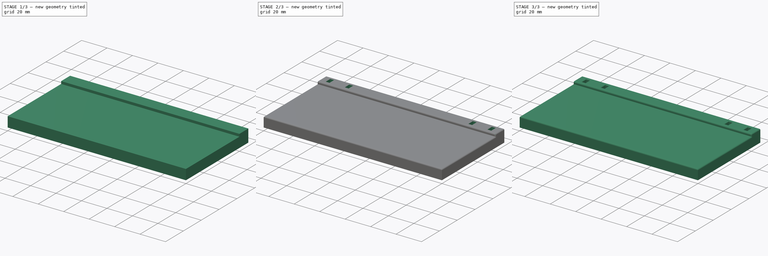
[diagram: build sequence overview — one tinted view per stage of 3, left to right]
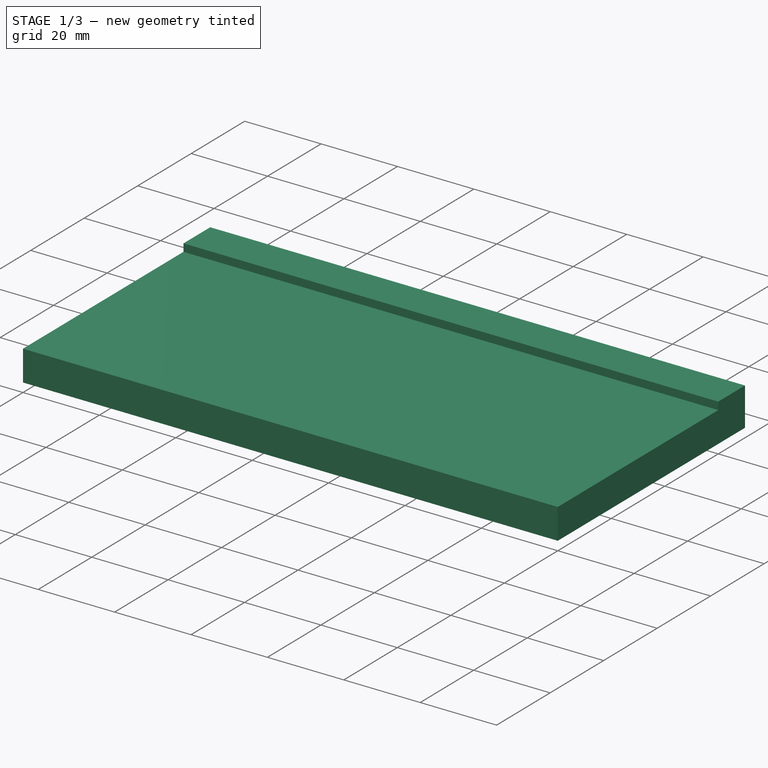
[diagram: stage 1 of 3 — iso view after this stage's code; geometry added in this stage tinted green]
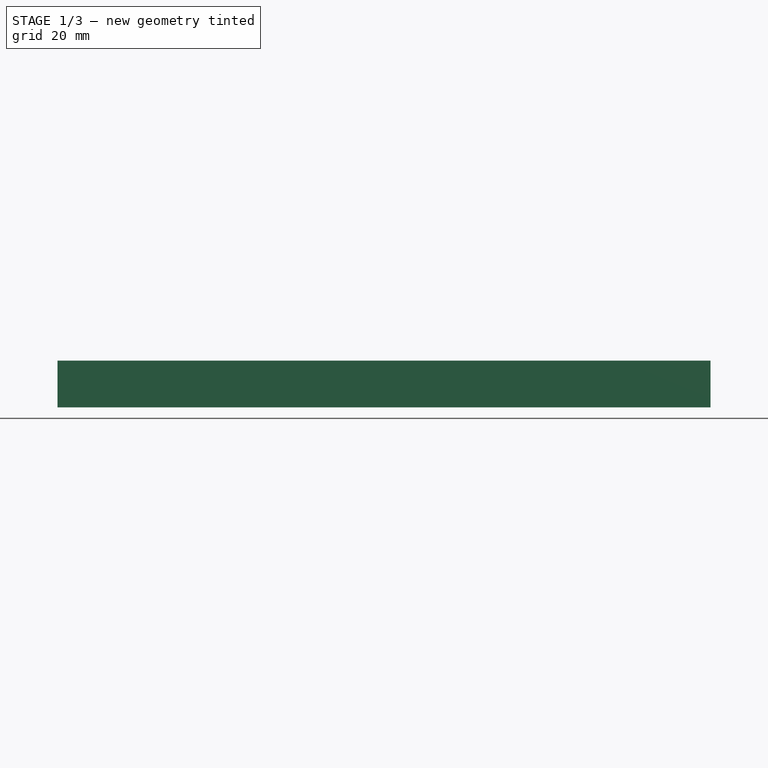
[diagram: stage 1 of 3 — front view after this stage's code; geometry added in this stage tinted green]
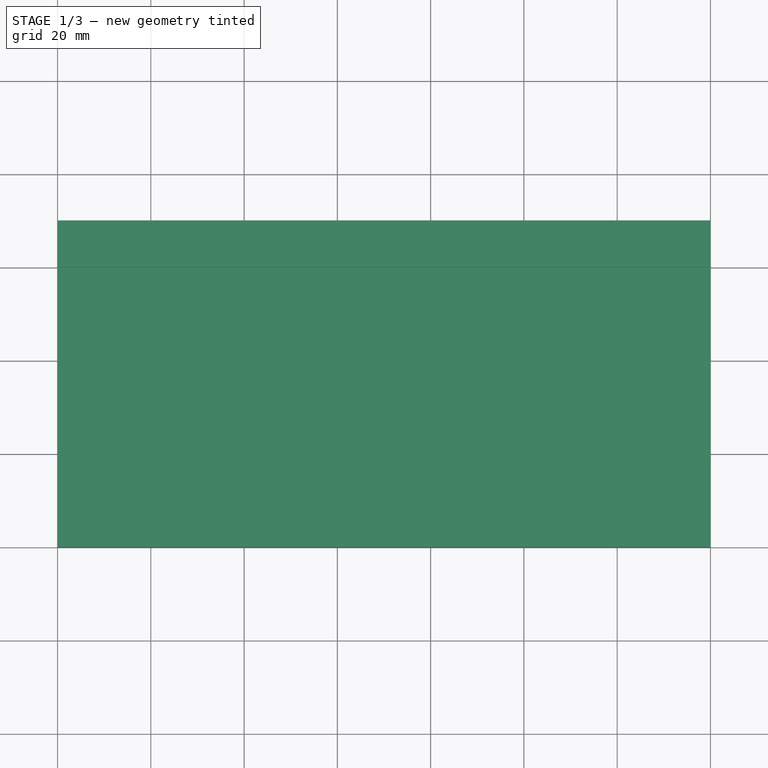
[diagram: stage 1 of 3 — top view after this stage's code; geometry added in this stage tinted green]
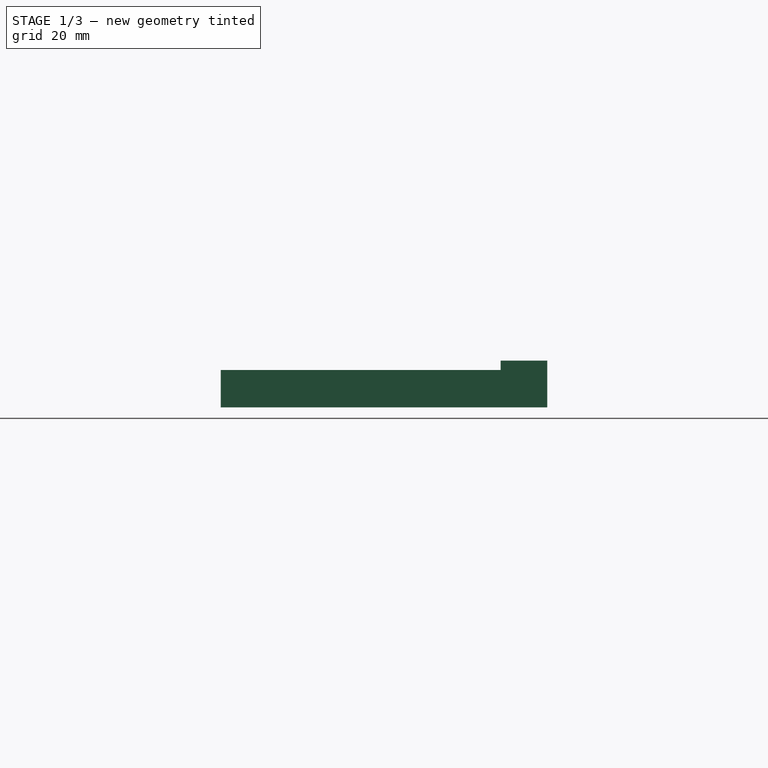
[diagram: stage 1 of 3 — right view after this stage's code; geometry added in this stage tinted green]
FCSTD DOCUMENT  (FreeCAD 0.19R)
Label: balkonkasten_v2
License: All rights reserved
LicenseURL: http://en.wikipedia.org/wiki/All_rights_reserved
objects: Sketcher::SketchObject×3, PartDesign::Fillet×3, PartDesign::Pocket×2, PartDesign::Pad×1, PartDesign::Body×1
note: 16 computed .brp shape members not serialized (recipe doc carries the construction recipe); baked Part::Feature solids carry a one-line shape summary decoded from their .brp

FEATURE [Sketcher::SketchObject] Sketch
  FullyConstrained = true
  MapMode = 5
  Support = -> [XY_Plane]
  sketch-geometry (4):
    g0: LineSegment StartX=0 StartY=70 StartZ=0 EndX=140 EndY=70 EndZ=0
    g1: LineSegment StartX=140 StartY=70 StartZ=0 EndX=140 EndY=0 EndZ=0
    g2: LineSegment StartX=140 StartY=0 StartZ=0 EndX=0 EndY=0 EndZ=0
    g3: LineSegment StartX=0 StartY=0 StartZ=0 EndX=0 EndY=70 EndZ=0
  constraints (11):
    c: Coincident(g0,g1)
    c: Coincident(g1,g2)
    c: Coincident(g2,g3)
    c: Coincident(g3,g0)
    c: Horizontal(g0)
    c: Horizontal(g2)
    c: Vertical(g1)
    c: Vertical(g3)
    c: Coincident(g-1,g2)
    c: DistanceY(g1,g1) = 70
    c: DistanceX(g0,g0) = 140
FEATURE [PartDesign::Pad] Pad
  Direction = (1,1,1)
  Length = 10
  Length2 = 100
  Profile = -> Sketch
  Type = 0
FEATURE [Sketcher::SketchObject] Sketch001
  FullyConstrained = true
  MapMode = 5
  Placement = pos=(0,0,10) rot=(0,0,1;0rad)
  Support = -> [Pad]
  sketch-geometry (4):
    g0: LineSegment StartX=0 StartY=60 StartZ=0 EndX=140 EndY=60 EndZ=0
    g1: LineSegment StartX=140 StartY=60 StartZ=0 EndX=140 EndY=0 EndZ=0
    g2: LineSegment StartX=140 StartY=0 StartZ=0 EndX=0 EndY=0 EndZ=0
    g3: LineSegment StartX=0 StartY=0 StartZ=0 EndX=0 EndY=60 EndZ=0
  constraints (11):
    c: Coincident(g0,g1)
    c: Coincident(g1,g2)
    c: Coincident(g2,g3)
    c: Coincident(g3,g0)
    c: Horizontal(g0)
    c: Horizontal(g2)
    c: Vertical(g1)
    c: Vertical(g3)
    c: Coincident(g2,g-1)
    c: DistanceX(g2,g2) = 140
    c: DistanceY(g1,g1) = 60
FEATURE [PartDesign::Pocket] Pocket
  BaseFeature = -> Pad
  Length = 2
  Length2 = 100
  Profile = -> Sketch001
  Type = 0
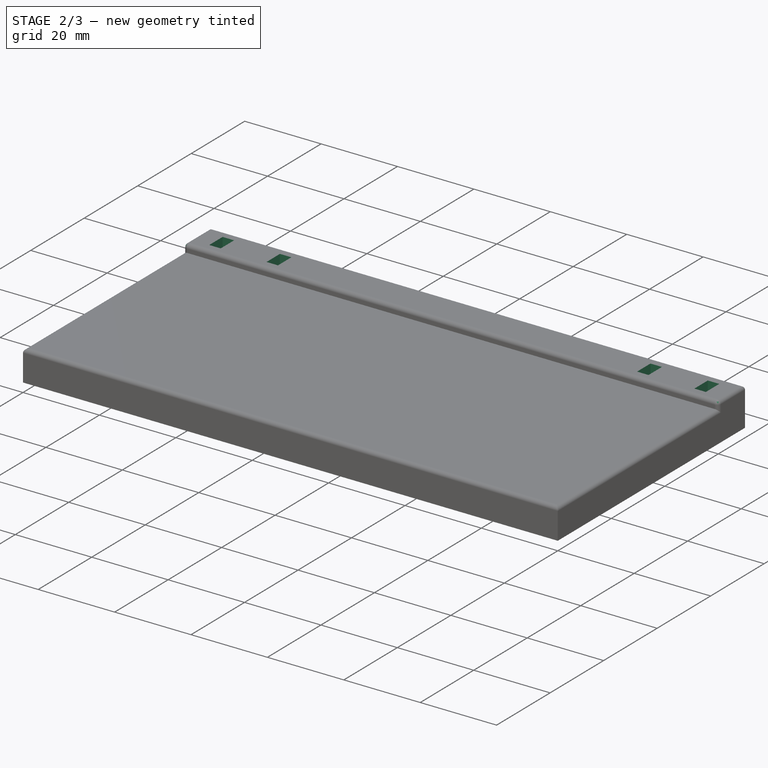
[diagram: stage 2 of 3 — iso view after this stage's code; geometry added in this stage tinted green]
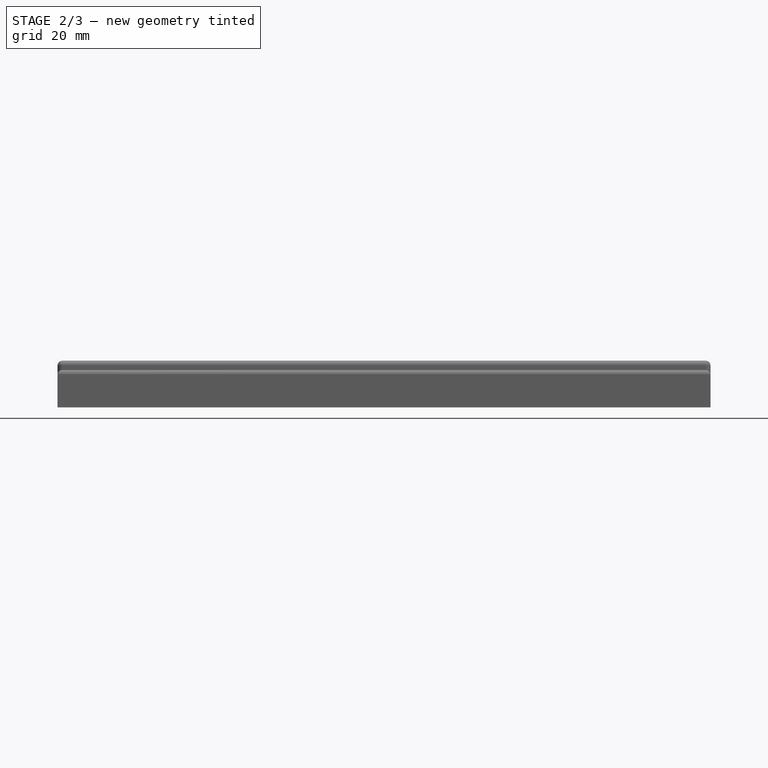
[diagram: stage 2 of 3 — front view after this stage's code; geometry added in this stage tinted green]
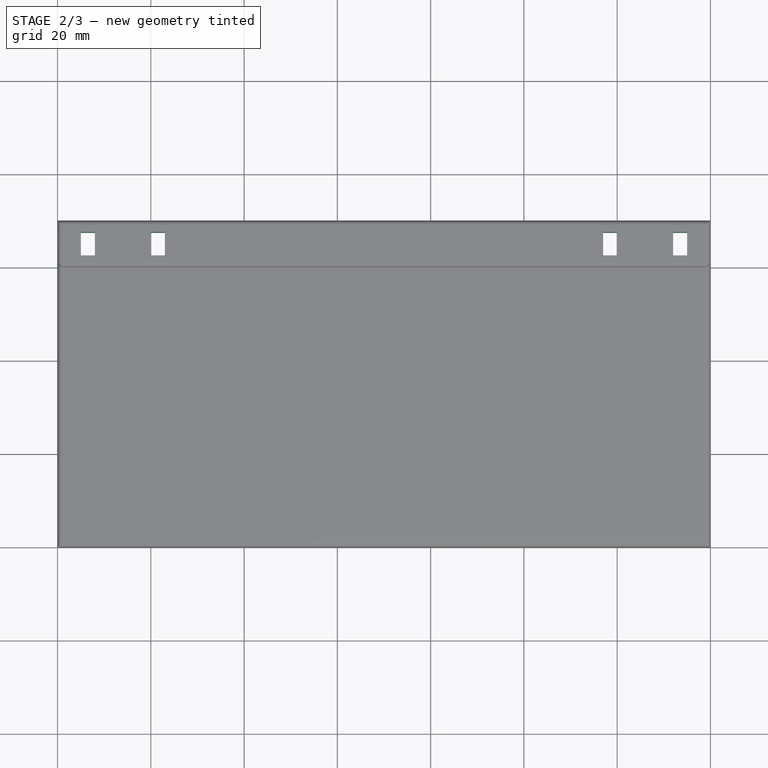
[diagram: stage 2 of 3 — top view after this stage's code; geometry added in this stage tinted green]
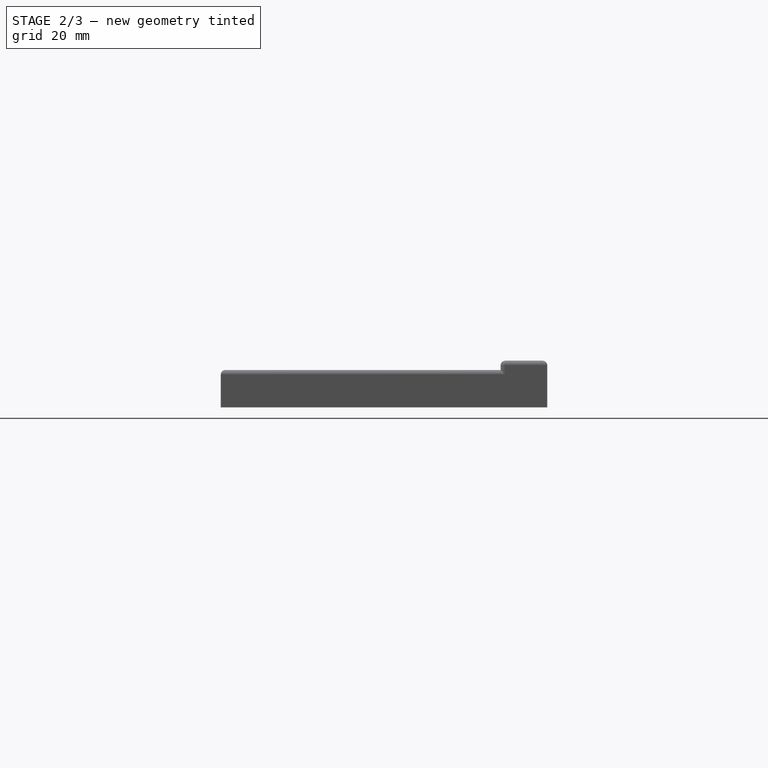
[diagram: stage 2 of 3 — right view after this stage's code; geometry added in this stage tinted green]
FEATURE [PartDesign::Fillet] Fillet
  Base = -> Pocket [Edge8,Edge18,Edge12,Edge16,Edge14,Edge4,Edge6,Edge7,Edge13]
  BaseFeature = -> Pocket
  Radius = 1
  SupportTransform = false
FEATURE [Sketcher::SketchObject] Sketch002
  FullyConstrained = true
  MapMode = 5
  Placement = pos=(0,0,10) rot=(0,0,1;0rad)
  Support = -> [Fillet]
  sketch-geometry (16):
    g0: LineSegment StartX=5 StartY=67.5 StartZ=0 EndX=8 EndY=67.5 EndZ=0
    g1: LineSegment StartX=8 StartY=67.5 StartZ=0 EndX=8 EndY=62.5 EndZ=0
    g2: LineSegment StartX=8 StartY=62.5 StartZ=0 EndX=5 EndY=62.5 EndZ=0
    g3: LineSegment StartX=5 StartY=62.5 StartZ=0 EndX=5 EndY=67.5 EndZ=0
    g4: LineSegment StartX=20 StartY=67.5 StartZ=0 EndX=23 EndY=67.5 EndZ=0
    g5: LineSegment StartX=23 StartY=67.5 StartZ=0 EndX=23 EndY=62.5 EndZ=0
    g6: LineSegment StartX=23 StartY=62.5 StartZ=0 EndX=20 EndY=62.5 EndZ=0
    g7: LineSegment StartX=20 StartY=62.5 StartZ=0 EndX=20 EndY=67.5 EndZ=0
    g8: LineSegment StartX=117 StartY=67.5 StartZ=0 EndX=120 EndY=67.5 EndZ=0
    g9: LineSegment StartX=120 StartY=67.5 StartZ=0 EndX=120 EndY=62.5 EndZ=0
    g10: LineSegment StartX=120 StartY=62.5 StartZ=0 EndX=117 EndY=62.5 EndZ=0
    g11: LineSegment StartX=117 StartY=62.5 StartZ=0 EndX=117 EndY=67.5 EndZ=0
    g12: LineSegment StartX=132 StartY=67.5 StartZ=0 EndX=135 EndY=67.5 EndZ=0
    g13: LineSegment StartX=135 StartY=67.5 StartZ=0 EndX=135 EndY=62.5 EndZ=0
    g14: LineSegment StartX=135 StartY=62.5 StartZ=0 EndX=132 EndY=62.5 EndZ=0
    g15: LineSegment StartX=132 StartY=62.5 StartZ=0 EndX=132 EndY=67.5 EndZ=0
  constraints (48):
    c: Coincident(g0,g1)
    c: Coincident(g1,g2)
    c: Coincident(g2,g3)
    c: Coincident(g3,g0)
    c: Horizontal(g0)
    c: Horizontal(g2)
    c: Vertical(g1)
    c: Vertical(g3)
    c: DistanceX(g0,g0) = 3
    c: DistanceY(g1,g1) = 5
    c: DistanceY(g-1,g2) = 62.5
    c: DistanceX(g-1,g2) = 5
    c: Coincident(g4,g5)
    c: Coincident(g5,g6)
    c: Coincident(g6,g7)
    c: Coincident(g7,g4)
    c: Horizontal(g4)
    c: Horizontal(g6)
    c: Vertical(g5)
    c: Vertical(g7)
    c: Horizontal(g0,g4)
    c: Equal(g0,g4)
    c: Equal(g1,g5)
    c: DistanceX(g1,g6) = 12
    c: Coincident(g8,g9)
    c: Coincident(g9,g10)
    c: Coincident(g10,g11)
    c: Coincident(g11,g8)
    c: Horizontal(g8)
    c: Horizontal(g10)
    c: Vertical(g9)
    c: Vertical(g11)
    c: Coincident(g12,g13)
    c: Coincident(g13,g14)
    c: Coincident(g14,g15)
    c: Coincident(g15,g12)
    c: Horizontal(g12)
    c: Horizontal(g14)
    c: Vertical(g13)
    c: Vertical(g15)
    c: Equal(g0,g8)
    c: Equal(g8,g12)
    c: Equal(g1,g9)
    c: Equal(g9,g13)
    c: Horizontal(g4,g8)
    c: Horizontal(g8,g12)
    c: DistanceX(g9,g14) = 12
    c: DistanceX(g-1,g13) = 135
FEATURE [PartDesign::Pocket] Pocket001
  BaseFeature = -> Fillet
  Length = 5
  Length2 = 100
  Profile = -> Sketch002
  Type = 1
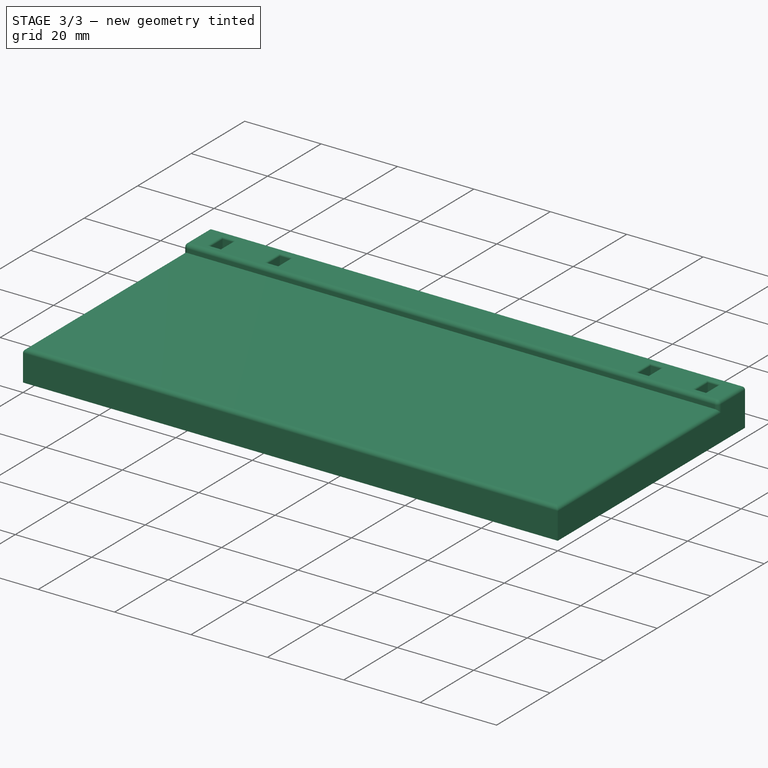
[diagram: stage 3 of 3 — iso view after this stage's code; geometry added in this stage tinted green]
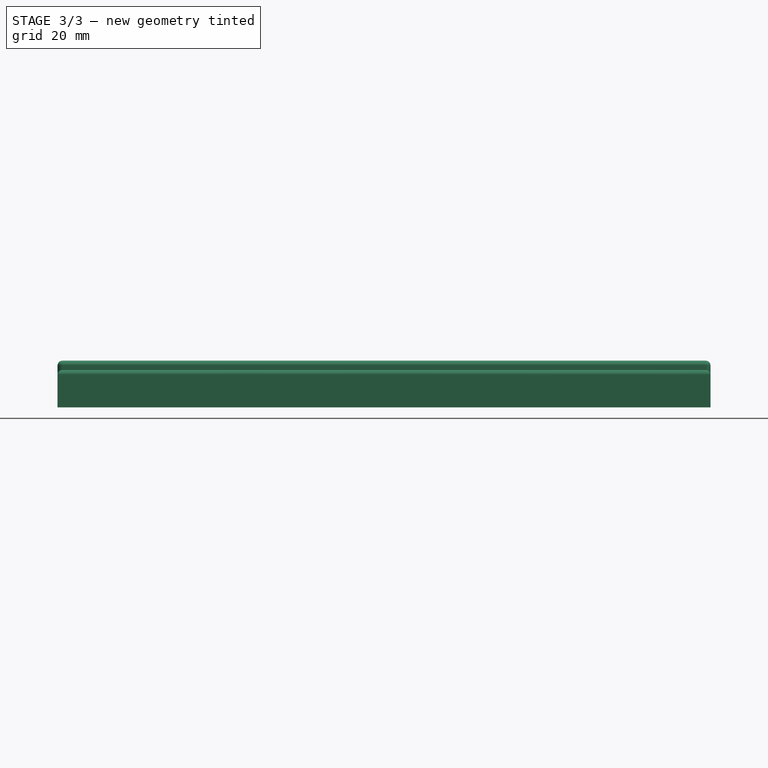
[diagram: stage 3 of 3 — front view after this stage's code; geometry added in this stage tinted green]
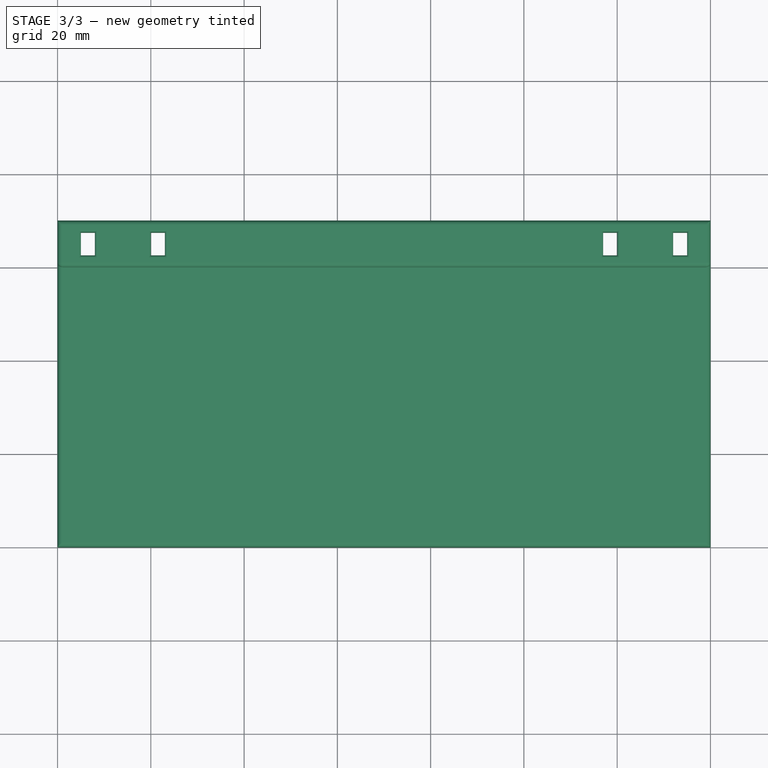
[diagram: stage 3 of 3 — top view after this stage's code; geometry added in this stage tinted green]
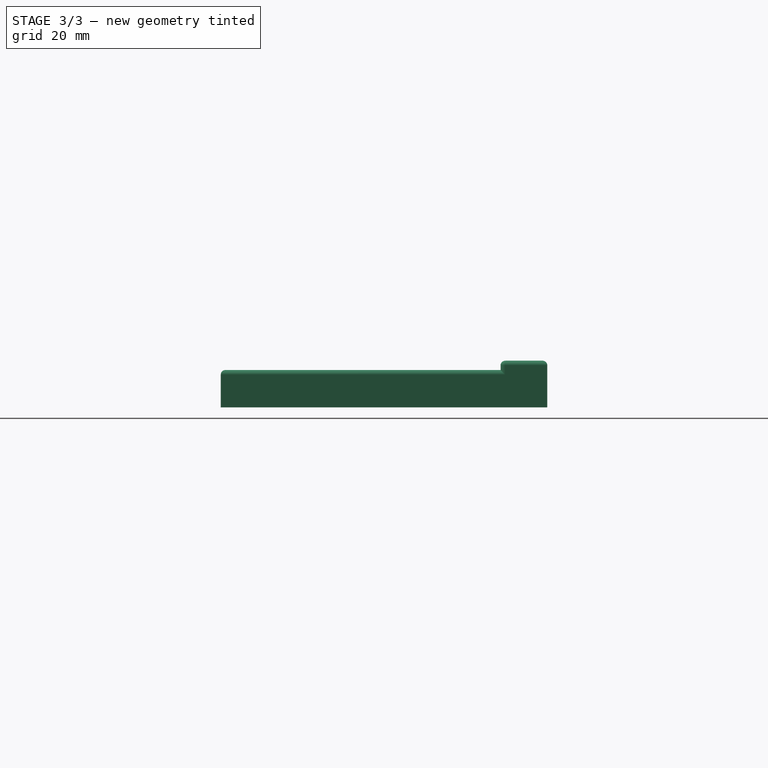
[diagram: stage 3 of 3 — right view after this stage's code; geometry added in this stage tinted green]
FEATURE [PartDesign::Fillet] Fillet001
  Base = -> Pocket001 [Edge60,Edge57,Edge58,Edge59,Edge53,Edge56,Edge54,Edge55,Edge52,Edge49,Edge50,Edge51,Edge45,Edge48,Edge47,Edge46]
  BaseFeature = -> Pocket001
  Radius = 0.5
  SupportTransform = false
FEATURE [PartDesign::Fillet] Fillet002
  Base = -> Fillet001 [Edge64,Edge66,Edge70,Edge69,Edge96,Edge92,Edge90,Edge95,Edge98,Edge100,Edge104,Edge103,Edge108,Edge112,Edge111,Edge106]
  BaseFeature = -> Fillet001
  Radius = 0.5
  SupportTransform = false
FEATURE [PartDesign::Body] Body
  Group = -> [Sketch,Pad,Sketch001,Pocket,Fillet,Sketch002,Pocket001,Fillet001,Fillet002]
  Origin = -> Origin
  Tip = -> Fillet002
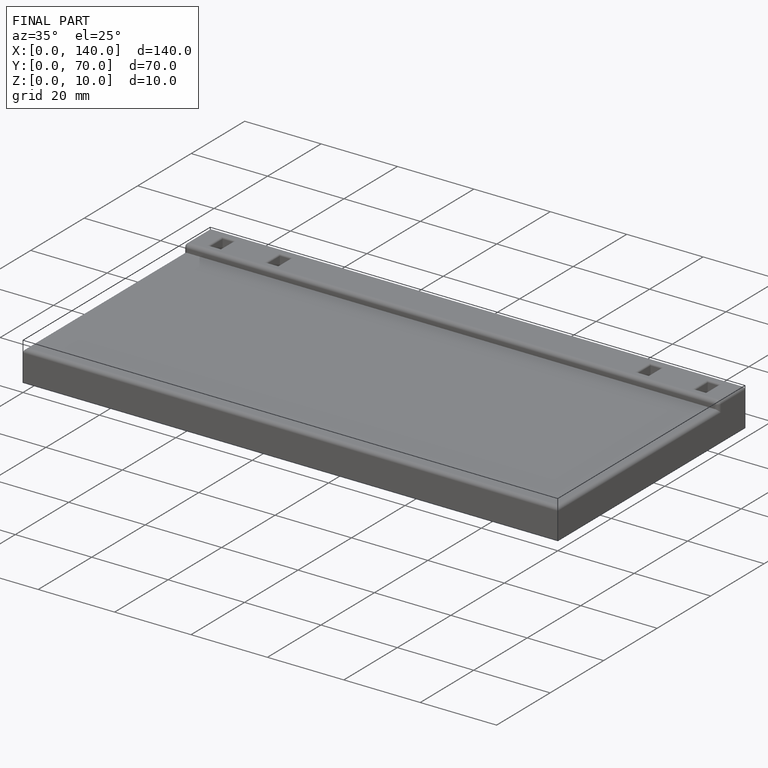
[diagram: finished part — iso view with bounding-box wireframe]
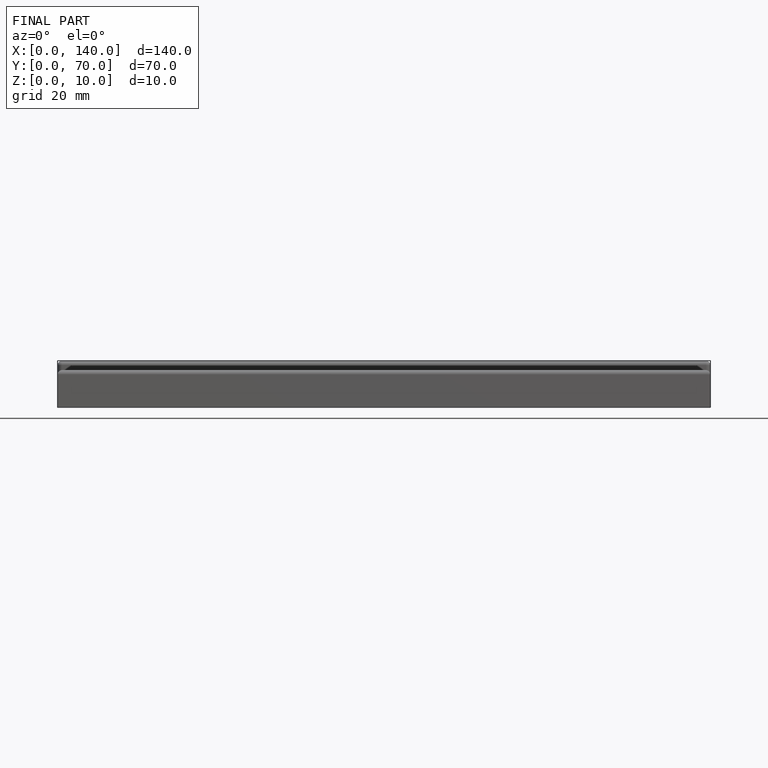
[diagram: finished part — front view with bounding-box wireframe]
